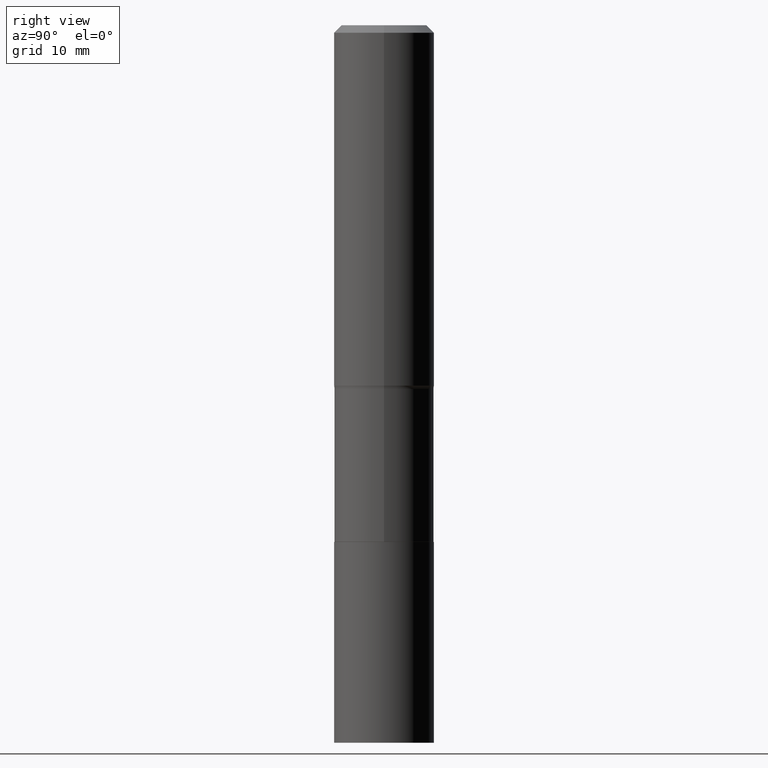
[diagram: clean part render]
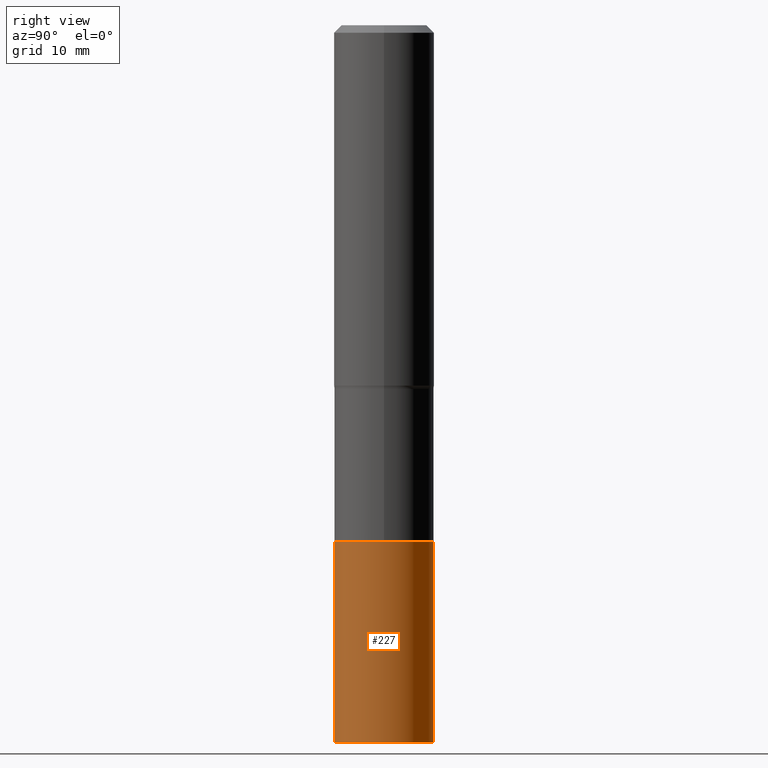
[diagram: same view with one face highlighted and labeled with its STEP entity id]
A machine part, right view. The second image highlights one B-rep face of the part: STEP entity #227.
In plain terms, the highlighted cylindrical surface (partial cylindrical patch) has radius 6.9456 mm, axis along (-0, 0, 1).
Its self-contained STEP definition (entity closure, byte-faithful):
#1 = CARTESIAN_POINT ( 'NONE',  ( 1.942979110936090781E-15, 0.2734499999999901454, -2.835000000000000853 ) ) ;
#3 = DIRECTION ( 'NONE',  ( -6.982962677686265922E-15, -1.000000000000000000, 3.996120670929621909E-15 ) ) ;
#5 = AXIS2_PLACEMENT_3D ( 'NONE', #386, #62, #35 ) ;
#6 = DIRECTION ( 'NONE',  ( -2.445506570297261110E-29, 3.491427258485183651E-15, 1.000000000000000000 ) ) ;
#28 = CARTESIAN_POINT ( 'NONE',  ( 1.942979110936076976E-15, 0.2734499999999862596, -3.937000000000002498 ) ) ;
#35 = DIRECTION ( 'NONE',  ( -6.982962677686265922E-15, -1.000000000000000000, 3.996120670929621909E-15 ) ) ;
#37 = DIRECTION ( 'NONE',  ( -6.982962677686265922E-15, -1.000000000000000000, 3.996120670929621909E-15 ) ) ;
#47 = ORIENTED_EDGE ( 'NONE', *, *, #48, .T. ) ;
#48 = EDGE_CURVE ( 'NONE', #89, #325, #252, .T. ) ;
#51 = ORIENTED_EDGE ( 'NONE', *, *, #314, .F. ) ;
#59 = AXIS2_PLACEMENT_3D ( 'NONE', #397, #73, #37 ) ;
#62 = DIRECTION ( 'NONE',  ( -2.445506570297261110E-29, 3.491427258485183651E-15, 1.000000000000000000 ) ) ;
#73 = DIRECTION ( 'NONE',  ( -2.445506570297261110E-29, 3.491427258485183651E-15, 1.000000000000000000 ) ) ;
#75 = VECTOR ( 'NONE', #354, 39.37007874015748143 ) ;
#79 = CYLINDRICAL_SURFACE ( 'NONE', #289, 0.2734500000000000264 ) ;
#89 = VERTEX_POINT ( 'NONE', #28 ) ;
#110 = CARTESIAN_POINT ( 'NONE',  ( -1.909491144213240209E-15, -0.2734500000000099074, -2.834999999999998632 ) ) ;
#111 = EDGE_CURVE ( 'NONE', #424, #89, #465, .T. ) ;
#114 = ORIENTED_EDGE ( 'NONE', *, *, #111, .T. ) ;
#125 = CIRCLE ( 'NONE', #59, 0.2734500000000000264 ) ;
#146 = EDGE_LOOP ( 'NONE', ( #114, #47, #51, #443 ) ) ;
#187 = FACE_OUTER_BOUND ( 'NONE', #146, .T. ) ;
#220 = LINE ( 'NONE', #434, #330 ) ;
#222 = CARTESIAN_POINT ( 'NONE',  ( 6.932904065534861534E-29, -9.898349595620316510E-15, -2.834999999999999520 ) ) ;
#224 = DIRECTION ( 'NONE',  ( -2.445506570297261110E-29, 3.491427258485183651E-15, 1.000000000000000000 ) ) ;
#227 = ADVANCED_FACE ( 'NONE', ( #187 ), #79, .T. ) ;
#247 = CARTESIAN_POINT ( 'NONE',  ( 1.942979110936063171E-15, 0.2734499999999901454, -2.835000000000000853 ) ) ;
#252 = LINE ( 'NONE', #247, #75 ) ;
#284 = EDGE_CURVE ( 'NONE', #424, #308, #220, .T. ) ;
#289 = AXIS2_PLACEMENT_3D ( 'NONE', #222, #6, #3 ) ;
#308 = VERTEX_POINT ( 'NONE', #110 ) ;
#314 = EDGE_CURVE ( 'NONE', #308, #325, #125, .T. ) ;
#325 = VERTEX_POINT ( 'NONE', #1 ) ;
#330 = VECTOR ( 'NONE', #224, 39.37007874015748143 ) ;
#354 = DIRECTION ( 'NONE',  ( -2.445506570297261110E-29, 3.491427258485183651E-15, 1.000000000000000000 ) ) ;
#373 = CARTESIAN_POINT ( 'NONE',  ( -1.909491144213213388E-15, -0.2734500000000137931, -3.937000000000000277 ) ) ;
#386 = CARTESIAN_POINT ( 'NONE',  ( 9.627852306002447774E-29, -1.374590243447099296E-14, -3.937000000000001165 ) ) ;
#397 = CARTESIAN_POINT ( 'NONE',  ( 6.932904065534861534E-29, -9.898349595620316510E-15, -2.834999999999999520 ) ) ;
#424 = VERTEX_POINT ( 'NONE', #373 ) ;
#434 = CARTESIAN_POINT ( 'NONE',  ( -1.909491144213240209E-15, -0.2734500000000099074, -2.834999999999998632 ) ) ;
#443 = ORIENTED_EDGE ( 'NONE', *, *, #284, .F. ) ;
#465 = CIRCLE ( 'NONE', #5, 0.2734500000000000264 ) ;